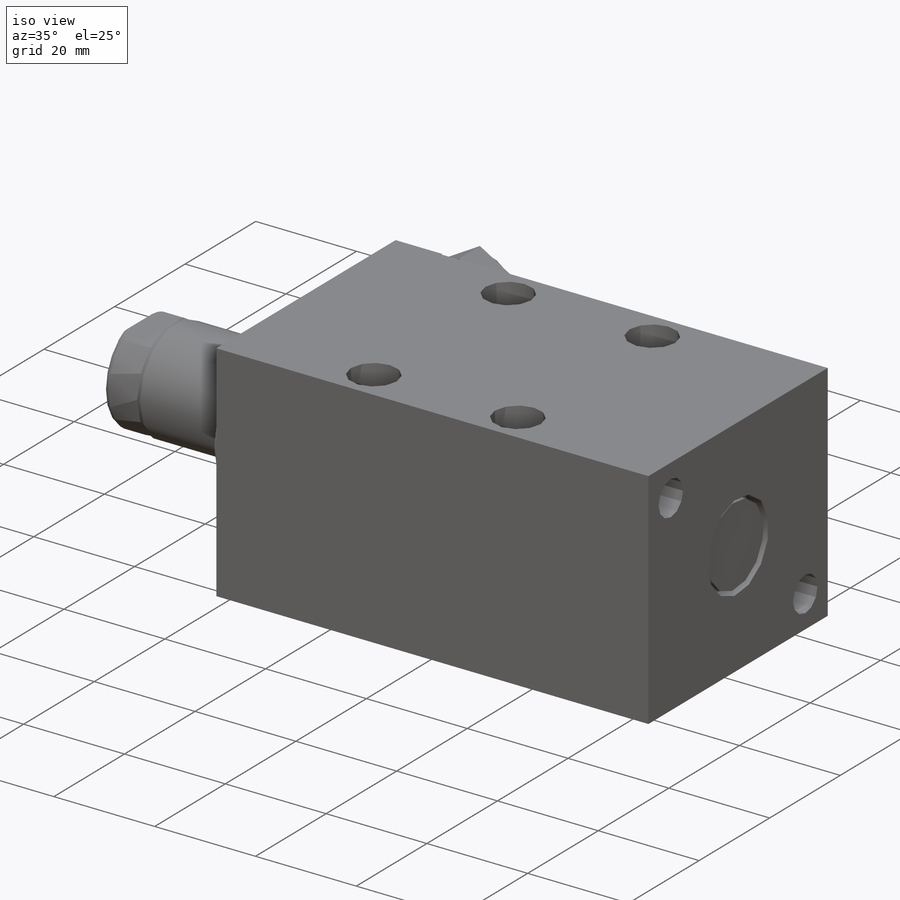
[diagram: iso view]
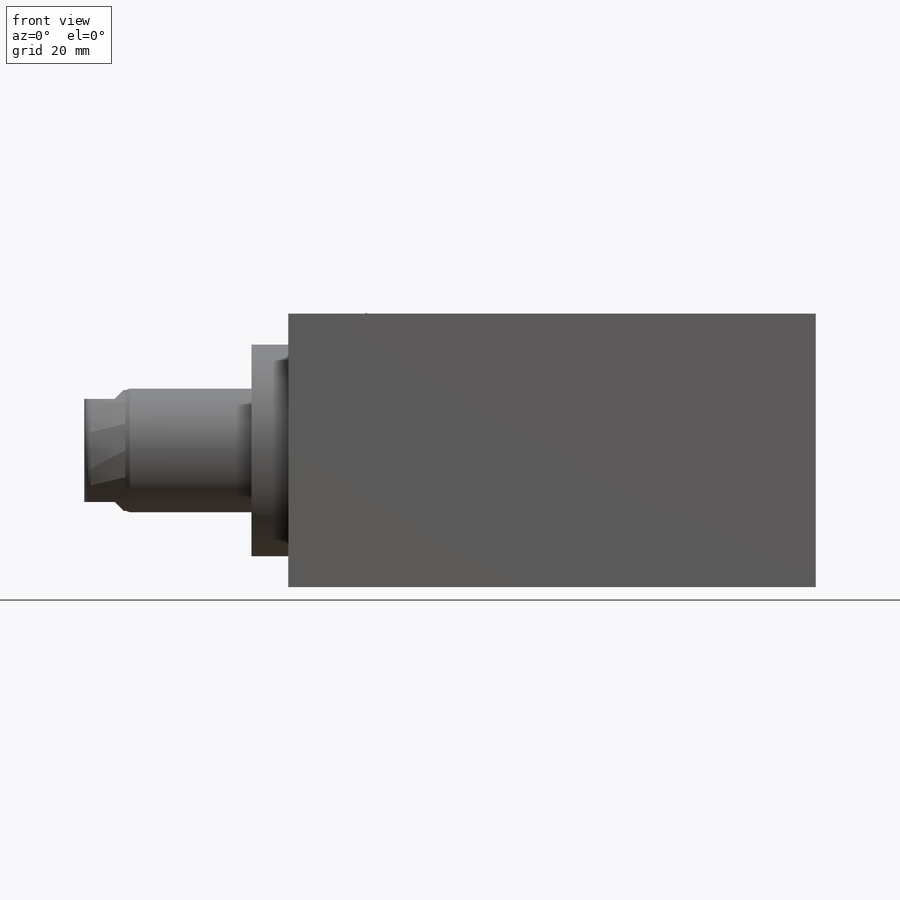
[diagram: front view]
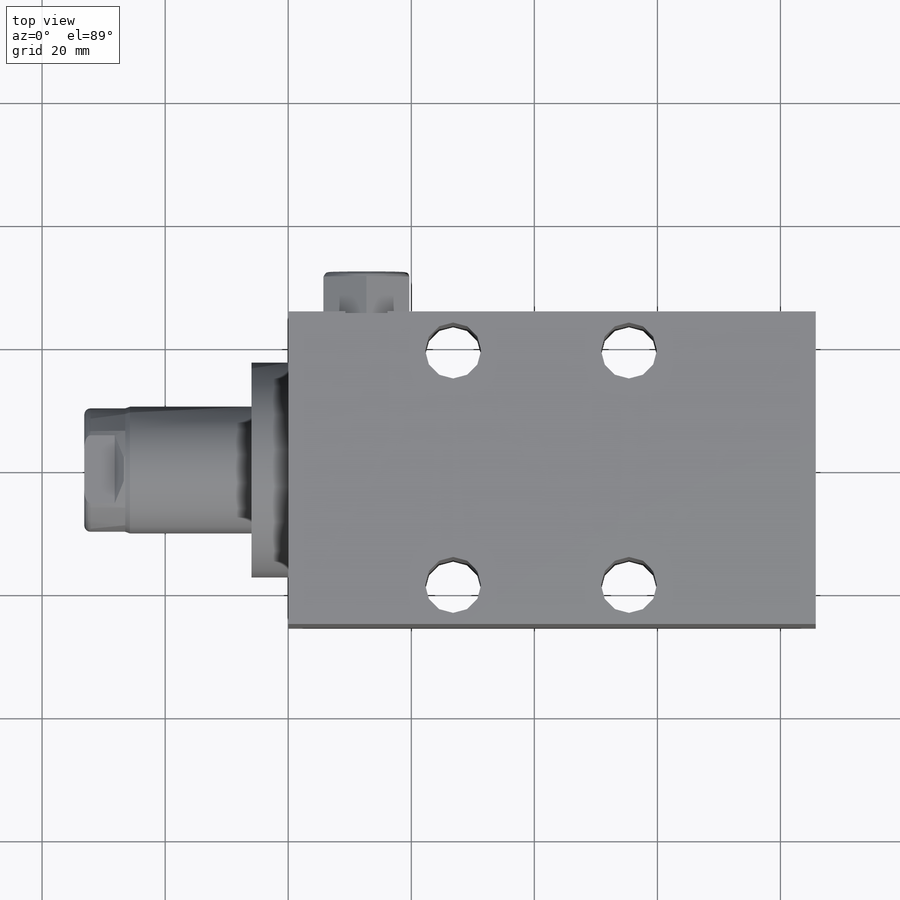
[diagram: top view]
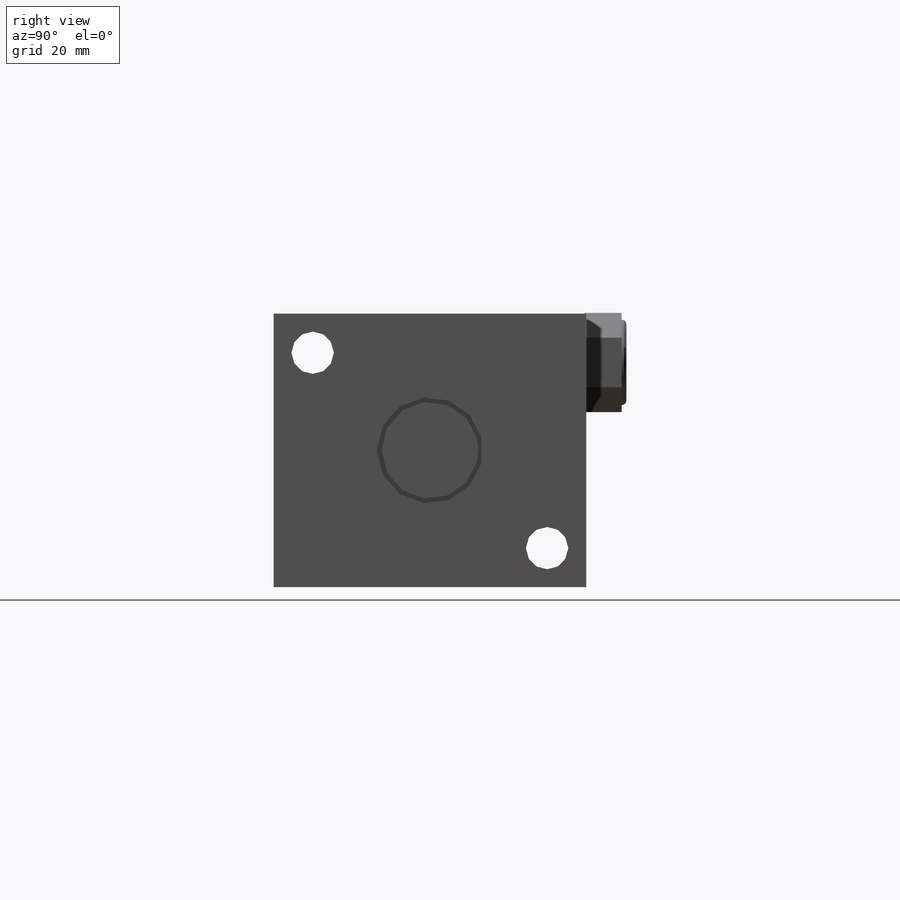
[diagram: right view]
SOLIDWORKS PART (.sldprt)
format: sldprt  version: not decoded by parser v0  size: 422,400 bytes
history: native  units: mm
features: sketch x15, plane x6, cut_revolve x5, extrude x4, pattern_linear x2, hole x2, material x1, revolve x1, cut_extrude x1 (+11 scaffold rows collapsed)
feature tree (48):
  scaffold x11  (default folders/planes/origin — collapsed)
  material  "Alloy Steel"
  plane  "Plane1"
  sketch  "Sketch1"  dims[D1=44.45mm D2=22.225mm D3=50.8mm D4=25.4mm]
  extrude  "Extrude1"  Depth=85.725mm
  plane  "Plane12"  Offset=7.925mm
  sketch  "S2D0002"  dims[c1.D1=13.97mm c1.D2=12.7mm c1.D3=8.8392mm c1.D4=~0.938906mm c2.D4=45.0deg c2.D5=12.3698mm c2.D6=~2.609729mm c3.D6=12.0deg c3.D7=0.0254mm c3.D1=13.716mm c3.D8=0.254mm c3.D9=17.272mm c3.D5=0.6223mm c4.D6=10.033mm]
  cut_revolve  "Cut-Revolve1"  Angle=360deg
  pattern_linear  "LPattern1"  Count1=2 Count2=2 Spacing1=57.15mm Spacing2=14.3mm
  sketch  "Sketch5"  dims[D1=34.925mm]
  extrude  "Extrude2"  Depth=5.969mm
  plane  "Plane5"
  sketch  "Sketch6"  dims[D1=118.872mm D2=20.6121mm]
  revolve  "Revolve1"  Angle=360deg
  plane  "Plane6"
  sketch  "S2D0001"  dims[c1.D1=2.2352mm c2.D1=30.0deg c2.D2=8.763mm c2.D3=6.782mm c2.D4=16.51mm c2.D5=2.5527mm c3.D5=90.0deg c3.D4=14.94mm]
  cut_revolve  "Cut-Revolve4"  Angle=360deg
  plane  "Plane7"
  sketch  "Sketch8"  dims[D2=1.016mm D1=20.066mm D3=1.016mm D4=0.762mm D5=6.655mm]
  cut_revolve  "Cut-Revolve5"  Angle=360deg
  plane  "Plane11"
  sketch  "Sketch12"  dims[c1.D1=16.764mm c1.D2=4.953mm c1.D3=~2.047498mm c2.D3=45.0deg]
  cut_extrude  "Cut-Extrude4"  Depth=60.96mm
  hole  "Hole1"  Diameter=6.909mm Depth=85.725mm
  sketch  "Sketch15"  dims[D1=15.875mm D2=19.05mm D3=31.75mm D4=38.1mm]
  sketch  "Sketch14"  dims[Diameter=6.909mm Depth=85.725mm]
  hole  "Hole2"  Diameter=9.093mm Depth=44.45mm
  sketch  "Sketch17"  dims[c1.D1=33.3502mm c1.D2=26.797mm c1.D3=19.05mm c2.D1=38.1mm]
  sketch  "Sketch16"  dims[Diameter=9.093mm Depth=44.45mm]
  sketch  "Sketch18"  dims[D1=13.97mm]
  extrude  "Extrude3"  Depth=6.78mm
  sketch  "Sketch19"  dims[D1=0.762mm D2=3.175mm D3=3.175mm]
  cut_revolve  "Cut-Revolve6"  Angle=360deg
  sketch  "Sketch20"  dims[c1.D1=17.272mm c1.D2=3.048mm c1.D3=10.033mm c1.D4=0.0254mm c1.D5=~2.786876mm c2.D5=45.0deg c2.D6=8.8392mm c2.D7=10.5664mm]
  cut_revolve  "Cut-Revolve7"  Angle=360deg
  sketch  "Sketch21"  dims[D1=15.748mm]
  extrude  "Extrude4"  Depth=2.54mm
  pattern_linear  "LPattern2"  Count1=2 Count2=1 Spacing1=28.575mm Spacing2=10mm
decode coverage: 30 of 30 modeling features carry decoded parameters
note: ~ marks probable driven/reference dimensions
note: suppression state not decoded; provenance and decode notes live in map.json
